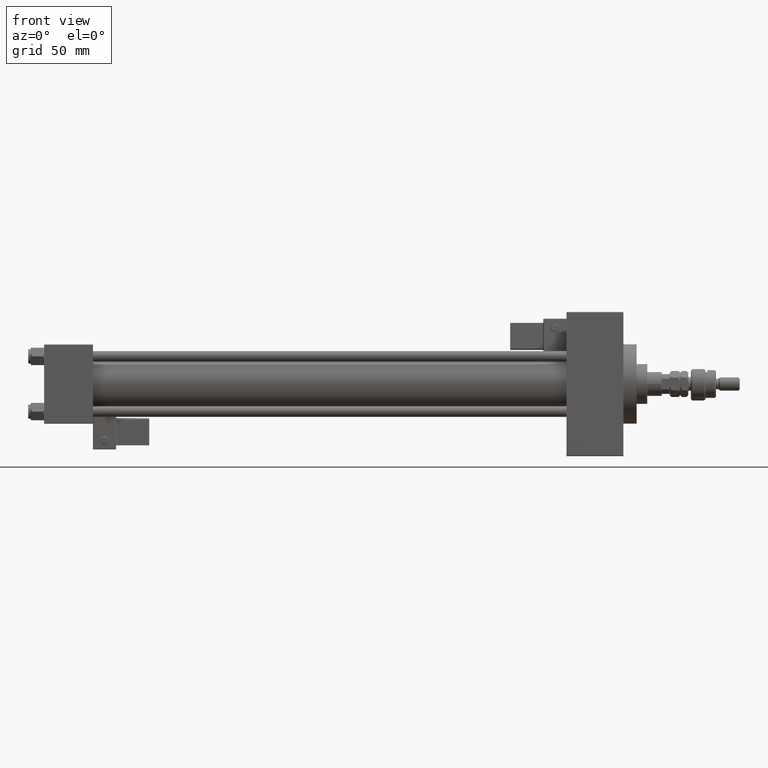
[diagram: clean part render]
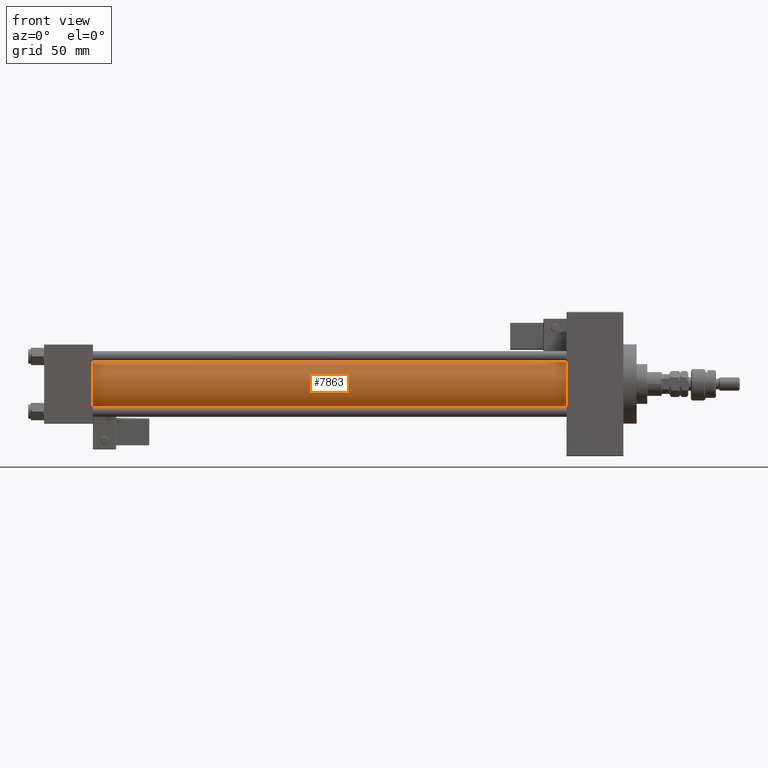
[diagram: same view with one face highlighted and labeled with its STEP entity id]
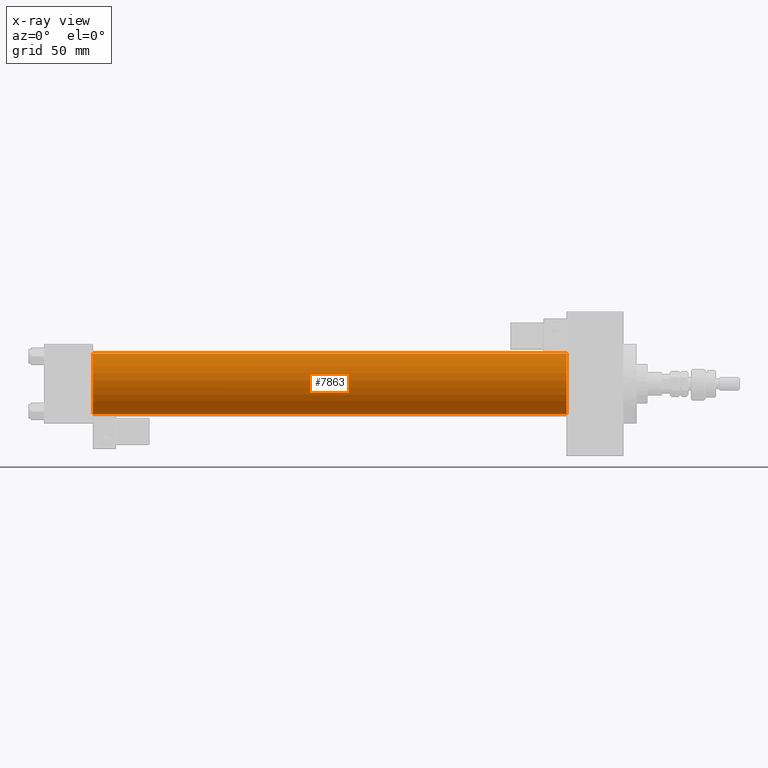
[diagram: x-ray of the same camera — body ghosted, the highlighted face saturated]
A machine part, front view. The second image highlights one B-rep face of the part: STEP entity #7863.
The next image is the same camera in x-ray: the body ghosted, the highlighted face saturated — about 0% of this face is hidden behind the body in this view.
In plain terms, the highlighted cylindrical surface (edge-blend (fillet) strip) has radius 23 mm, axis along (-1, -0, -0).
Its self-contained STEP definition (entity closure, byte-faithful):
#760 = CARTESIAN_POINT ( 'NONE',  ( 36.99999999999997868, -2.602085213965210642E-15, 23.00000000000000000 ) ) ;
#1305 = CARTESIAN_POINT ( 'NONE',  ( 394.9999999999999432, 2.146024240737012665E-16, -23.00000000000000000 ) ) ;
#1495 = CYLINDRICAL_SURFACE ( 'NONE', #9852, 23.00000000000000000 ) ;
#1565 = CARTESIAN_POINT ( 'NONE',  ( 394.9999999999999432, -2.602085213965210642E-15, 23.00000000000000000 ) ) ;
#4195 = VERTEX_POINT ( 'NONE', #760 ) ;
#5680 = LINE ( 'NONE', #1565, #8280 ) ;
#6850 = ORIENTED_EDGE ( 'NONE', *, *, #53075, .T. ) ;
#7792 = CIRCLE ( 'NONE', #21796, 23.00000000000000000 ) ;
#7863 = ADVANCED_FACE ( 'NONE', ( #48474 ), #1495, .T. ) ;
#8280 = VECTOR ( 'NONE', #10356, 1000.000000000000000 ) ;
#8867 = AXIS2_PLACEMENT_3D ( 'NONE', #43505, #30546, #51188 ) ;
#9654 = DIRECTION ( 'NONE',  ( 0.000000000000000000, 0.000000000000000000, 1.000000000000000000 ) ) ;
#9852 = AXIS2_PLACEMENT_3D ( 'NONE', #14128, #23176, #17963 ) ;
#10356 = DIRECTION ( 'NONE',  ( -1.000000000000000000, -0.000000000000000000, -0.000000000000000000 ) ) ;
#14128 = CARTESIAN_POINT ( 'NONE',  ( 394.9999999999999432, -2.602085213965210642E-15, 0.000000000000000000 ) ) ;
#15684 = VERTEX_POINT ( 'NONE', #20323 ) ;
#17963 = DIRECTION ( 'NONE',  ( 0.000000000000000000, 0.000000000000000000, 1.000000000000000000 ) ) ;
#20323 = CARTESIAN_POINT ( 'NONE',  ( 36.99999999999997868, 2.146024240737012665E-16, -23.00000000000000000 ) ) ;
#21160 = ORIENTED_EDGE ( 'NONE', *, *, #21584, .F. ) ;
#21584 = EDGE_CURVE ( 'NONE', #26256, #15684, #39491, .T. ) ;
#21796 = AXIS2_PLACEMENT_3D ( 'NONE', #21991, #30505, #9654 ) ;
#21991 = CARTESIAN_POINT ( 'NONE',  ( 36.99999999999997868, -2.602085213965210642E-15, 0.000000000000000000 ) ) ;
#22421 = DIRECTION ( 'NONE',  ( -1.000000000000000000, -0.000000000000000000, -0.000000000000000000 ) ) ;
#23176 = DIRECTION ( 'NONE',  ( -1.000000000000000000, -0.000000000000000000, -0.000000000000000000 ) ) ;
#26256 = VERTEX_POINT ( 'NONE', #36708 ) ;
#30505 = DIRECTION ( 'NONE',  ( 1.000000000000000000, -0.000000000000000000, 0.000000000000000000 ) ) ;
#30546 = DIRECTION ( 'NONE',  ( 1.000000000000000000, 0.000000000000000000, 0.000000000000000000 ) ) ;
#32520 = CIRCLE ( 'NONE', #8867, 23.00000000000000000 ) ;
#34169 = VERTEX_POINT ( 'NONE', #41838 ) ;
#35996 = ORIENTED_EDGE ( 'NONE', *, *, #47614, .T. ) ;
#36708 = CARTESIAN_POINT ( 'NONE',  ( 394.9999999999999432, 2.146024240737012665E-16, -23.00000000000000000 ) ) ;
#39491 = LINE ( 'NONE', #1305, #42631 ) ;
#41601 = EDGE_CURVE ( 'NONE', #34169, #26256, #32520, .T. ) ;
#41838 = CARTESIAN_POINT ( 'NONE',  ( 394.9999999999999432, -2.602085213965210642E-15, 23.00000000000000000 ) ) ;
#42631 = VECTOR ( 'NONE', #22421, 1000.000000000000000 ) ;
#43505 = CARTESIAN_POINT ( 'NONE',  ( 394.9999999999999432, -2.602085213965210642E-15, 0.000000000000000000 ) ) ;
#45697 = EDGE_LOOP ( 'NONE', ( #21160, #52368, #35996, #6850 ) ) ;
#47614 = EDGE_CURVE ( 'NONE', #34169, #4195, #5680, .T. ) ;
#48474 = FACE_OUTER_BOUND ( 'NONE', #45697, .T. ) ;
#51188 = DIRECTION ( 'NONE',  ( 0.000000000000000000, 0.000000000000000000, -1.000000000000000000 ) ) ;
#52368 = ORIENTED_EDGE ( 'NONE', *, *, #41601, .F. ) ;
#53075 = EDGE_CURVE ( 'NONE', #4195, #15684, #7792, .T. ) ;